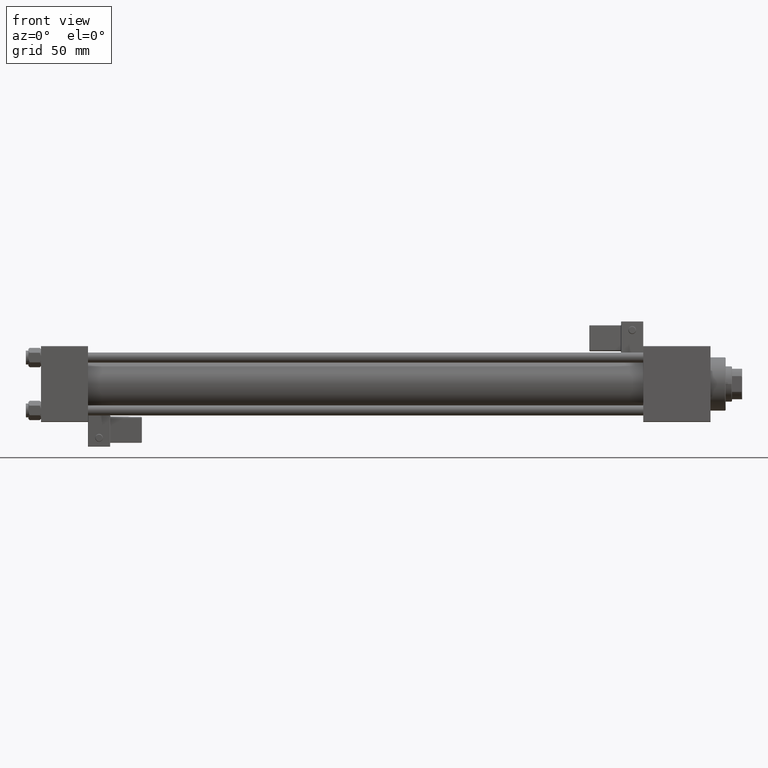
[diagram: clean part render]
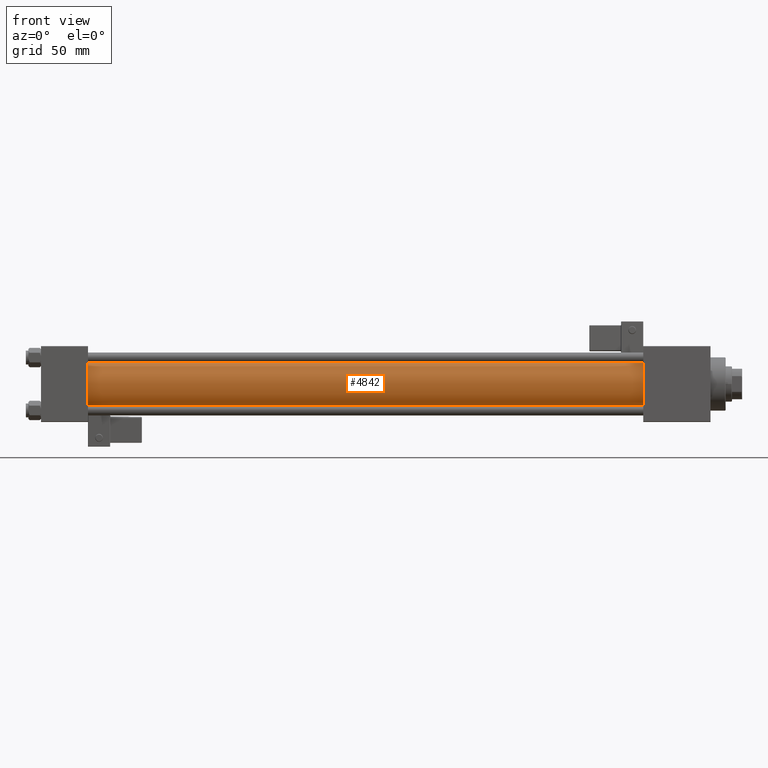
[diagram: same view with one face highlighted and labeled with its STEP entity id]
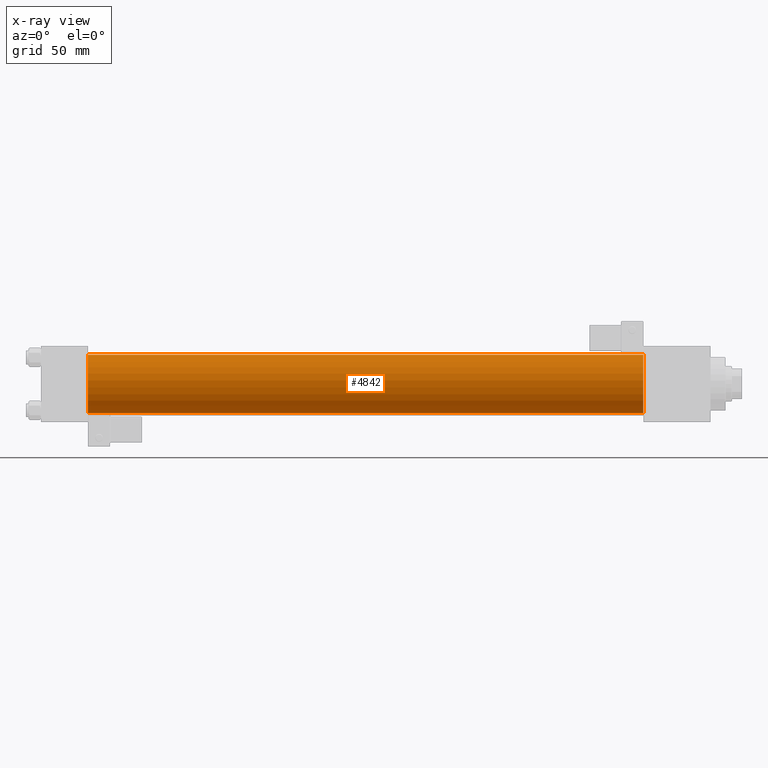
[diagram: x-ray of the same camera — body ghosted, the highlighted face saturated]
A machine part, front view. The second image highlights one B-rep face of the part: STEP entity #4842.
The next image is the same camera in x-ray: the body ghosted, the highlighted face saturated — about 0% of this face is hidden behind the body in this view.
In plain terms, the highlighted cylindrical surface (edge-blend (fillet) strip) has radius 23 mm, axis along (-1, -0, -0).
Its self-contained STEP definition (entity closure, byte-faithful):
#67 = ORIENTED_EDGE ( 'NONE', *, *, #36357, .T. ) ;
#1652 = CARTESIAN_POINT ( 'NONE',  ( 36.99999999999997868, -2.602085213965210642E-15, 0.000000000000000000 ) ) ;
#4842 = ADVANCED_FACE ( 'NONE', ( #16300 ), #45258, .T. ) ;
#5162 = VERTEX_POINT ( 'NONE', #28704 ) ;
#6007 = EDGE_CURVE ( 'NONE', #14441, #5162, #50097, .T. ) ;
#6448 = LINE ( 'NONE', #39515, #34357 ) ;
#6861 = VERTEX_POINT ( 'NONE', #27626 ) ;
#7004 = DIRECTION ( 'NONE',  ( -1.000000000000000000, -0.000000000000000000, -0.000000000000000000 ) ) ;
#8172 = CARTESIAN_POINT ( 'NONE',  ( 475.0000000000000000, -2.602085213965210642E-15, 0.000000000000000000 ) ) ;
#8417 = EDGE_CURVE ( 'NONE', #5162, #12187, #31952, .T. ) ;
#8586 = AXIS2_PLACEMENT_3D ( 'NONE', #51171, #11096, #48454 ) ;
#8685 = CARTESIAN_POINT ( 'NONE',  ( 36.99999999999997868, 2.146024240737016609E-16, -23.00000000000000000 ) ) ;
#11096 = DIRECTION ( 'NONE',  ( 1.000000000000000000, 0.000000000000000000, 0.000000000000000000 ) ) ;
#11298 = ORIENTED_EDGE ( 'NONE', *, *, #6007, .F. ) ;
#12069 = EDGE_LOOP ( 'NONE', ( #17732, #11298, #30930, #67 ) ) ;
#12187 = VERTEX_POINT ( 'NONE', #8685 ) ;
#14441 = VERTEX_POINT ( 'NONE', #53526 ) ;
#14732 = VECTOR ( 'NONE', #7004, 1000.000000000000000 ) ;
#16300 = FACE_OUTER_BOUND ( 'NONE', #12069, .T. ) ;
#17732 = ORIENTED_EDGE ( 'NONE', *, *, #8417, .F. ) ;
#18184 = DIRECTION ( 'NONE',  ( 0.000000000000000000, 0.000000000000000000, 1.000000000000000000 ) ) ;
#20242 = AXIS2_PLACEMENT_3D ( 'NONE', #1652, #47412, #18184 ) ;
#20628 = DIRECTION ( 'NONE',  ( -1.000000000000000000, -0.000000000000000000, -0.000000000000000000 ) ) ;
#27626 = CARTESIAN_POINT ( 'NONE',  ( 36.99999999999997868, -2.602085213965210642E-15, 23.00000000000000000 ) ) ;
#28407 = CARTESIAN_POINT ( 'NONE',  ( 475.0000000000000000, 2.146024240737016609E-16, -23.00000000000000000 ) ) ;
#28704 = CARTESIAN_POINT ( 'NONE',  ( 475.0000000000000000, 2.146024240737016609E-16, -23.00000000000000000 ) ) ;
#30636 = CIRCLE ( 'NONE', #20242, 23.00000000000000000 ) ;
#30930 = ORIENTED_EDGE ( 'NONE', *, *, #42380, .T. ) ;
#31952 = LINE ( 'NONE', #28407, #14732 ) ;
#34357 = VECTOR ( 'NONE', #44093, 1000.000000000000000 ) ;
#36357 = EDGE_CURVE ( 'NONE', #6861, #12187, #30636, .T. ) ;
#37163 = DIRECTION ( 'NONE',  ( 0.000000000000000000, 0.000000000000000000, 1.000000000000000000 ) ) ;
#39515 = CARTESIAN_POINT ( 'NONE',  ( 475.0000000000000000, -2.602085213965210642E-15, 23.00000000000000000 ) ) ;
#42380 = EDGE_CURVE ( 'NONE', #14441, #6861, #6448, .T. ) ;
#44093 = DIRECTION ( 'NONE',  ( -1.000000000000000000, -0.000000000000000000, -0.000000000000000000 ) ) ;
#45258 = CYLINDRICAL_SURFACE ( 'NONE', #50906, 23.00000000000000000 ) ;
#47412 = DIRECTION ( 'NONE',  ( 1.000000000000000000, -0.000000000000000000, 0.000000000000000000 ) ) ;
#48454 = DIRECTION ( 'NONE',  ( 0.000000000000000000, 0.000000000000000000, -1.000000000000000000 ) ) ;
#50097 = CIRCLE ( 'NONE', #8586, 23.00000000000000000 ) ;
#50906 = AXIS2_PLACEMENT_3D ( 'NONE', #8172, #20628, #37163 ) ;
#51171 = CARTESIAN_POINT ( 'NONE',  ( 475.0000000000000000, -2.602085213965210642E-15, 0.000000000000000000 ) ) ;
#53526 = CARTESIAN_POINT ( 'NONE',  ( 475.0000000000000000, -2.602085213965210642E-15, 23.00000000000000000 ) ) ;